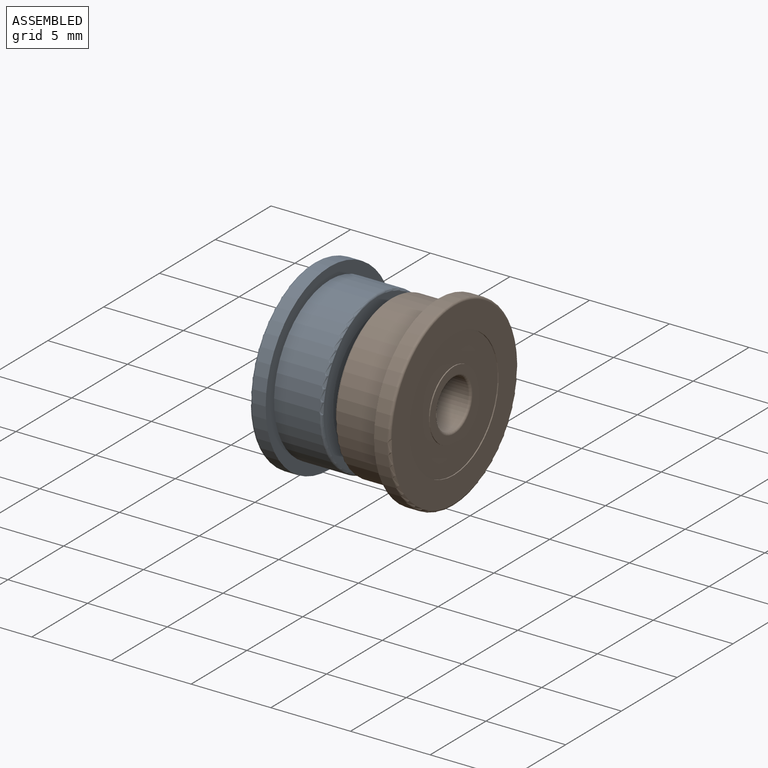
[diagram: assembled view]
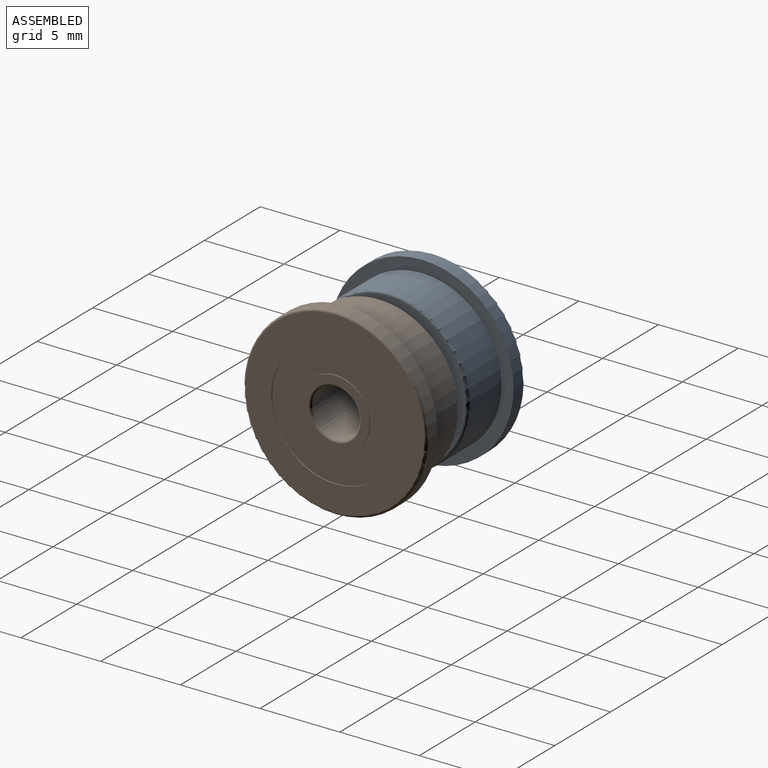
[diagram: assembled view, second angle]
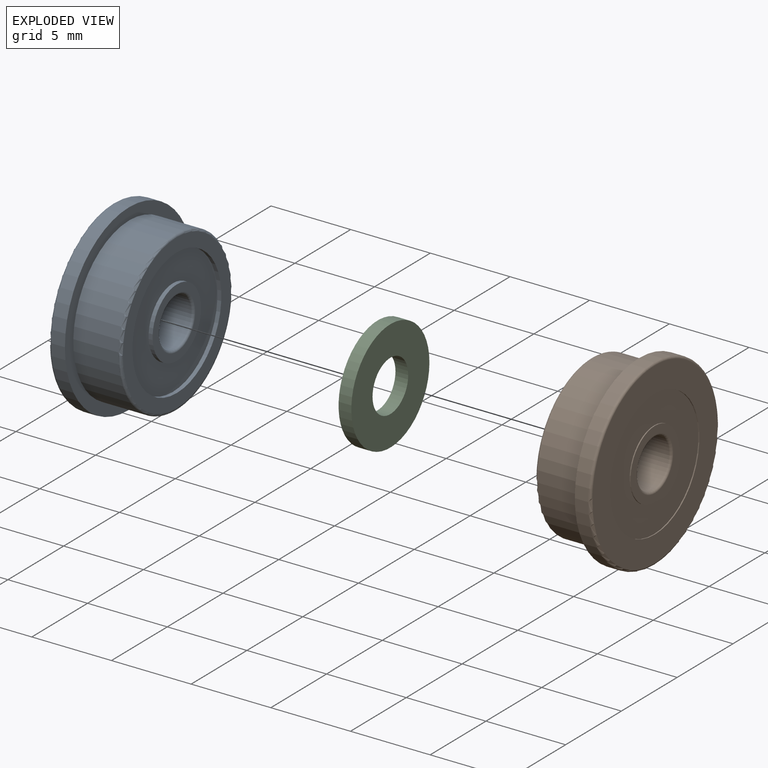
[diagram: exploded view]
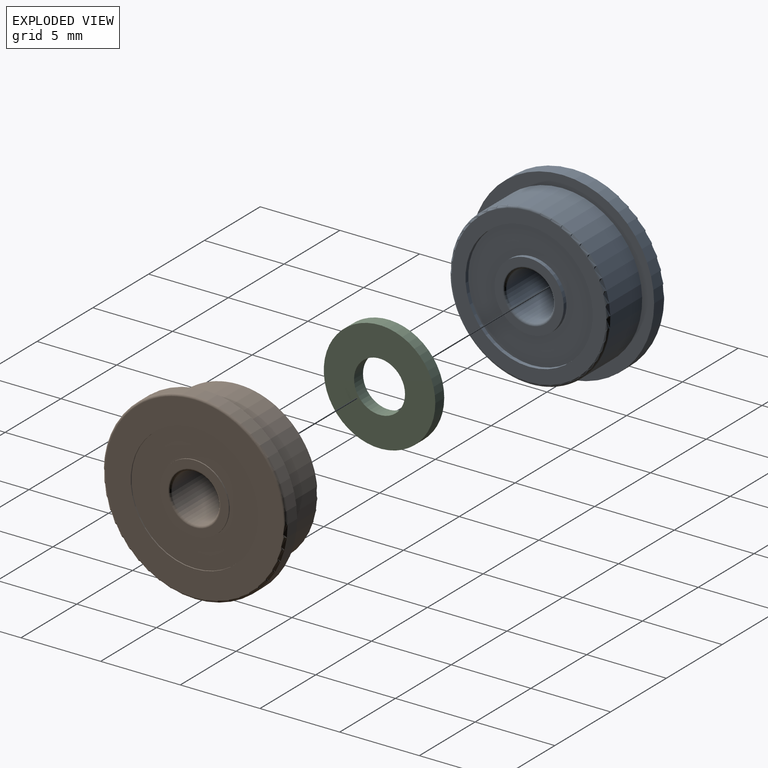
[diagram: exploded view, second angle]
ASSEMBLY  parts=3 mates=2
PART A: 26 faces, bbox 4x12.4x12.4 mm
  f0: cylinder r=3.99mm len=7.98mm, axis (1,0,0), area 1.6mm2, adj f11,f17
  f1: plane 7.98x7.98mm, normal (-1,0,0), area 35.2mm2, adj f8,f10
  f2: plane 4.35x4.35mm, normal (-1,0,0), area 6.3mm2, adj f3,f8
  f3: torus R=1.65mm, axis (1,0,0), area 2.3mm2, adj f2,f4
  f4: cylinder r=1.5mm len=3.7mm, axis (1,0,0), area 34.9mm2, adj f3,f5
  f5: torus R=1.65mm, axis (1,0,0), area 2.3mm2, adj f4,f6
  f6: plane 4.35x4.35mm, normal (1,0,0), area 6.3mm2, adj f5,f7
  f7: cylinder r=2.17mm len=4.35mm, axis (1,0,0), area 0.9mm2, adj f6,f17
  f8: cylinder r=2.17mm len=4.35mm, axis (1,0,0), area 3.4mm2, adj f1,f2
  f9: plane 9.7x9.7mm, normal (-1,0,0), area 23.9mm2, adj f10,f16
  f10: cylinder r=3.99mm len=7.98mm, axis (1,0,0), area 6.3mm2, adj f1,f9
  f11: plane 11.2x11.2mm, normal (1,0,0), area 48.5mm2, adj f0,f12
  f12: torus R=5.6mm, axis (1,0,0), area 8.4mm2, adj f11,f13
  f13: cylinder r=5.75mm len=11.5mm, axis (1,0,0), area 30.7mm2, adj f12,f14
  f14: plane 11.5x11.5mm, normal (-1,0,0), area 25.3mm2, adj f13,f15
  f15: cylinder r=5mm len=10mm, axis (1,0,0), area 89.5mm2, adj f14,f16
  f16: torus R=4.85mm, axis (1,0,0), area 7.3mm2, adj f9,f15
  f17: plane 7.98x7.98mm, normal (1,0,0), area 35.2mm2, adj f0,f7
  f18: cylinder r=2.4mm len=4.8mm, axis (1,0,0), area 14.3mm2, adj f19,f21
  f19: torus R=3.25mm, axis (1,0,0), area 18.8mm2, adj f18,f20
  f20: cylinder r=2.4mm len=4.8mm, axis (1,0,0), area 17.1mm2, adj f19,f25
  f21: plane 7.08x7.08mm, normal (1,0,0), area 21.3mm2, adj f18,f22
  f22: cylinder r=3.54mm len=7.08mm, axis (1,0,0), area 12.3mm2, adj f21,f23
  f23: torus R=3.25mm, axis (1,0,0), area 68.7mm2, adj f22,f24
  f24: cylinder r=3.54mm len=7.08mm, axis (1,0,0), area 16.5mm2, adj f23,f25
  f25: plane 7.08x7.08mm, normal (-1,0,0), area 21.3mm2, adj f20,f24
PART B: same geometry as A
PART C: 4 faces, bbox 0.8x7x7 mm
  f0: cylinder r=1.6mm len=3.2mm, axis (-1,0,0), area 8mm2, adj f2,f3
  f1: cylinder r=3.5mm len=7mm, axis (-1,0,0), area 17.6mm2, adj f2,f3
  f2: plane 7x7mm, normal (1,0,0), area 30.4mm2, adj f0,f1
  f3: plane 7x7mm, normal (-1,0,0), area 30.4mm2, adj f0,f1
PLACE A rot(axis=(0,1,0),180deg) t=(-0.8,0,0)mm
PLACE B at identity
PLACE C t=(-25.8,0,0)mm
MATE fastened A.f0 <-> C.f0  axis (1,0,0) through (-0.8,0,0)mm
MATE fastened C.f0 <-> B.f0  axis (-1,0,0) through (0,0,0)mm
